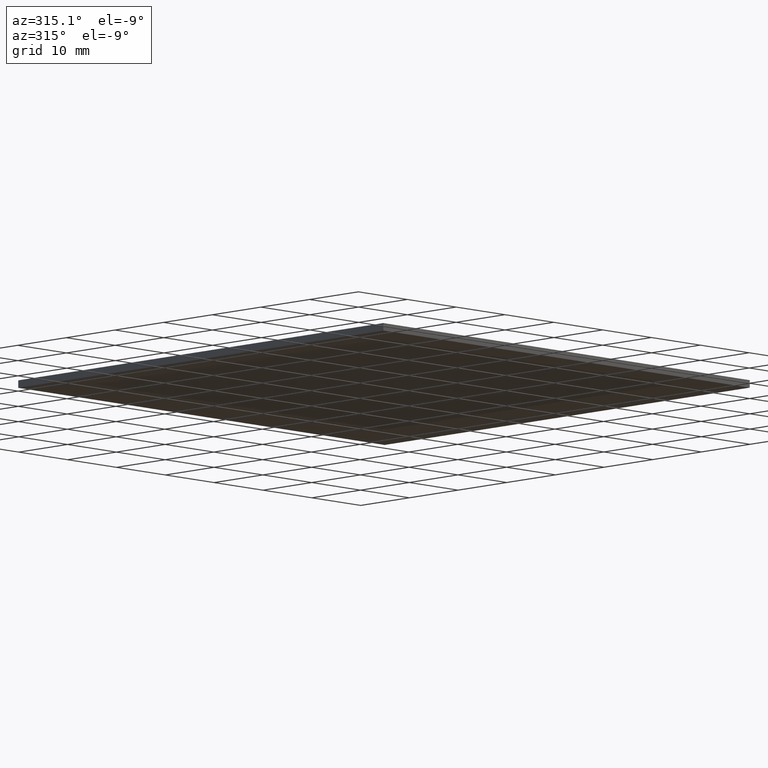
[diagram: clean part render]
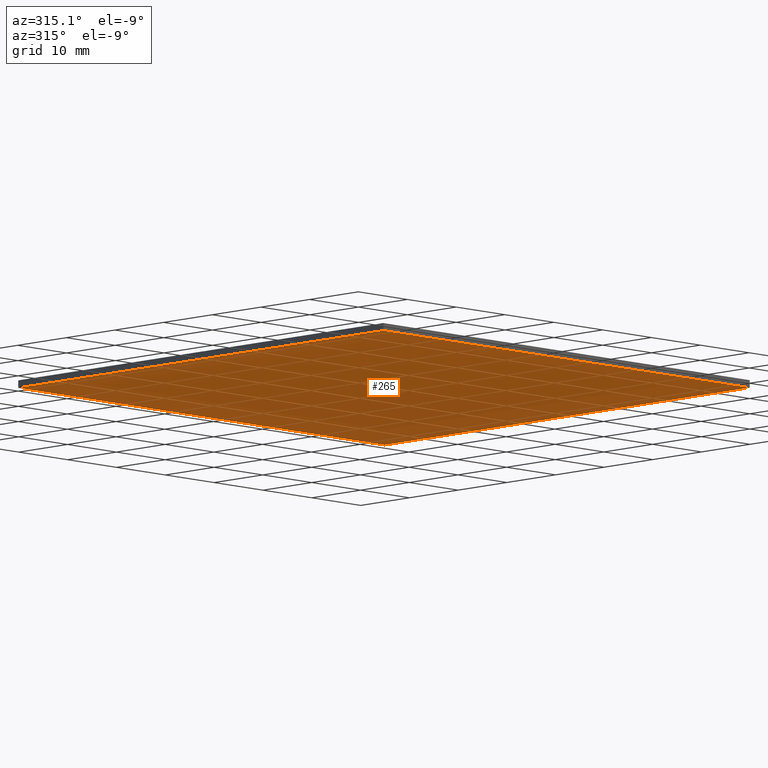
[diagram: same view with one face highlighted and labeled with its STEP entity id]
A machine part, auxiliary view. The second image highlights one B-rep face of the part: STEP entity #265.
In plain terms, the highlighted planar face has unit normal (-0, 0, 1).
Its self-contained STEP definition (entity closure, byte-faithful):
#2 = VERTEX_POINT ( 'NONE', #134 ) ;
#5 = VERTEX_POINT ( 'NONE', #63 ) ;
#24 = LINE ( 'NONE', #70, #287 ) ;
#34 = LINE ( 'NONE', #255, #239 ) ;
#35 = EDGE_CURVE ( 'NONE', #256, #296, #49, .T. ) ;
#49 = LINE ( 'NONE', #60, #212 ) ;
#60 = CARTESIAN_POINT ( 'NONE',  ( 49.99999999999999300, 25.00000000000000000, 0.0000000000000000000 ) ) ;
#63 = CARTESIAN_POINT ( 'NONE',  ( -24.99999999999998900, -49.99999999999999300, 0.0000000000000000000 ) ) ;
#67 = DIRECTION ( 'NONE',  ( -0.0000000000000000000, 0.0000000000000000000, 1.000000000000000000 ) ) ;
#70 = CARTESIAN_POINT ( 'NONE',  ( -25.00000000000000000, 25.00000000000000000, 0.0000000000000000000 ) ) ;
#96 = CARTESIAN_POINT ( 'NONE',  ( -24.99999999999998900, -49.99999999999999300, 0.0000000000000000000 ) ) ;
#97 = DIRECTION ( 'NONE',  ( 1.000000000000000000, 0.0000000000000000000, 0.0000000000000000000 ) ) ;
#127 = VECTOR ( 'NONE', #97, 1000.000000000000000 ) ;
#134 = CARTESIAN_POINT ( 'NONE',  ( -25.00000000000000000, 25.00000000000000000, 0.0000000000000000000 ) ) ;
#139 = DIRECTION ( 'NONE',  ( 1.000000000000000000, 0.0000000000000000000, 0.0000000000000000000 ) ) ;
#142 = CARTESIAN_POINT ( 'NONE',  ( 49.99999999999999300, 25.00000000000000000, 0.0000000000000000000 ) ) ;
#157 = EDGE_LOOP ( 'NONE', ( #301, #289, #266, #279 ) ) ;
#162 = EDGE_CURVE ( 'NONE', #296, #2, #34, .T. ) ;
#186 = AXIS2_PLACEMENT_3D ( 'NONE', #244, #67, #139 ) ;
#196 = LINE ( 'NONE', #96, #127 ) ;
#207 = PLANE ( 'NONE',  #186 ) ;
#212 = VECTOR ( 'NONE', #231, 1000.000000000000000 ) ;
#231 = DIRECTION ( 'NONE',  ( -9.251858538542971600E-017, 1.000000000000000000, -0.0000000000000000000 ) ) ;
#232 = DIRECTION ( 'NONE',  ( -1.000000000000000000, -0.0000000000000000000, -0.0000000000000000000 ) ) ;
#239 = VECTOR ( 'NONE', #232, 1000.000000000000000 ) ;
#242 = DIRECTION ( 'NONE',  ( 1.387778780781445700E-016, -1.000000000000000000, 0.0000000000000000000 ) ) ;
#244 = CARTESIAN_POINT ( 'NONE',  ( 0.0000000000000000000, 0.0000000000000000000, 0.0000000000000000000 ) ) ;
#255 = CARTESIAN_POINT ( 'NONE',  ( -25.00000000000000000, 25.00000000000000000, 0.0000000000000000000 ) ) ;
#256 = VERTEX_POINT ( 'NONE', #281 ) ;
#265 = ADVANCED_FACE ( 'NONE', ( #271 ), #207, .F. ) ;
#266 = ORIENTED_EDGE ( 'NONE', *, *, #35, .F. ) ;
#269 = EDGE_CURVE ( 'NONE', #5, #256, #196, .T. ) ;
#271 = FACE_OUTER_BOUND ( 'NONE', #157, .T. ) ;
#279 = ORIENTED_EDGE ( 'NONE', *, *, #269, .F. ) ;
#281 = CARTESIAN_POINT ( 'NONE',  ( 50.00000000000000000, -49.99999999999999300, 0.0000000000000000000 ) ) ;
#287 = VECTOR ( 'NONE', #242, 1000.000000000000000 ) ;
#289 = ORIENTED_EDGE ( 'NONE', *, *, #162, .F. ) ;
#296 = VERTEX_POINT ( 'NONE', #142 ) ;
#301 = ORIENTED_EDGE ( 'NONE', *, *, #315, .F. ) ;
#315 = EDGE_CURVE ( 'NONE', #2, #5, #24, .T. ) ;